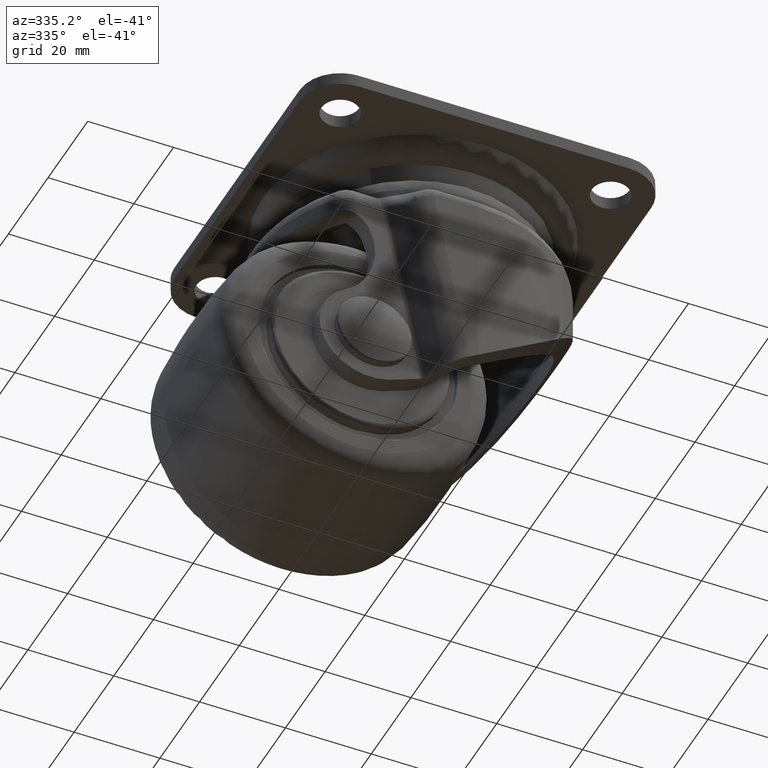
[diagram: clean part render]
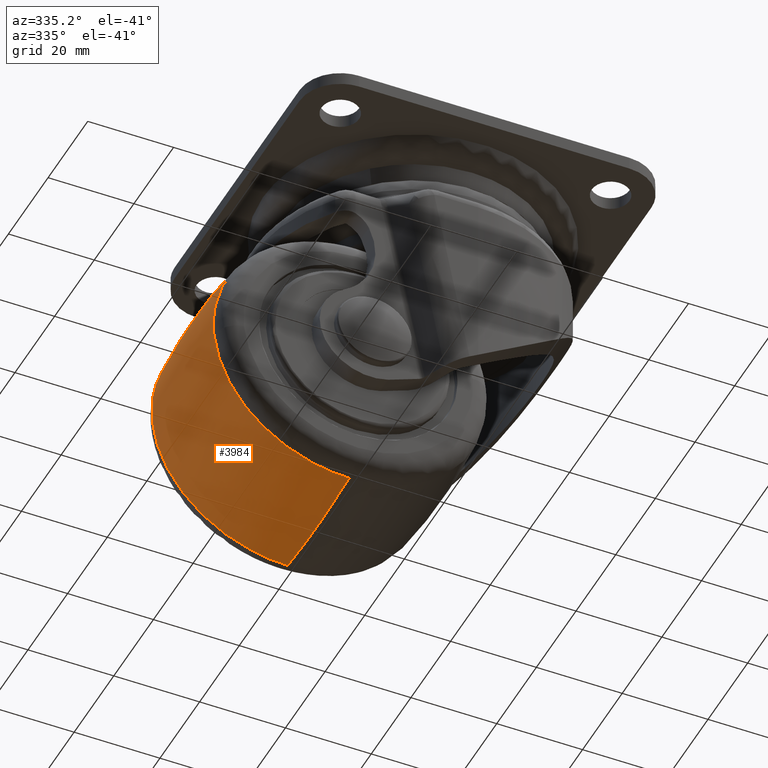
[diagram: same view with one face highlighted and labeled with its STEP entity id]
A machine part, auxiliary view. The second image highlights one B-rep face of the part: STEP entity #3984.
In plain terms, the highlighted face is a freeform B-spline surface patch.
Its self-contained STEP definition (entity closure, byte-faithful):
#3663=CARTESIAN_POINT('',(-31.572678825541949,-15.517245946462900,-2.784463437110068));
#3664=VERTEX_POINT('',#3663);
#3678=CARTESIAN_POINT('',(0.0,-15.517245970402470,-31.695224714110800));
#3679=VERTEX_POINT('',#3678);
#3680=CARTESIAN_POINT('',(-31.572678825541949,-15.517245946462900,-2.784463437110068));
#3681=CARTESIAN_POINT('',(-31.454430102422720,-15.517245947018649,-4.125565868471425));
#3682=CARTESIAN_POINT('',(-30.991182493355549,-15.517245948355249,-7.156404525607689));
#3683=CARTESIAN_POINT('',(-29.753500861823909,-15.517245950397029,-11.207999117309271));
#3684=CARTESIAN_POINT('',(-28.083201540478090,-15.517245952452569,-14.824743249857320));
#3685=CARTESIAN_POINT('',(-26.036200691073219,-15.517245954587620,-18.241685798995171));
#3686=CARTESIAN_POINT('',(-23.663457677187701,-15.517245956690889,-21.218341385260139));
#3687=CARTESIAN_POINT('',(-20.981522697461831,-15.517245958779981,-23.820691544935379));
#3688=CARTESIAN_POINT('',(-18.158928063179289,-15.517245960796609,-26.079201306347670));
#3689=CARTESIAN_POINT('',(-14.444891783451171,-15.517245963188380,-28.357753105156348));
#3690=CARTESIAN_POINT('',(-10.249339427943760,-15.517245965576571,-30.101344579932480));
#3691=CARTESIAN_POINT('',(-5.385166278793093,-15.517245968059820,-31.368567463679330));
#3692=CARTESIAN_POINT('',(-2.080695884135969,-15.517245969545250,-31.695522136826071));
#3693=CARTESIAN_POINT('',(0.0,-15.517245970402470,-31.695224714110800));
#3694=B_SPLINE_CURVE_WITH_KNOTS('',3,(#3680,#3681,#3682,#3683,#3684,#3685,#3686,#3687,#3688,#3689,#3690,#3691,#3692,#3693),.UNSPECIFIED.,.F.,.U.,(4,1,1,1,1,1,1,1,1,1,1,4),(0.000000042085318,4.038927505506145,9.179434857180056,12.667633120064879,15.972247504716959,21.112730320356292,24.050107376942321,27.171125646638650,31.944463144206409,37.084952140032797,40.756731921153730,46.998750865324517),.UNSPECIFIED.);
#3695=EDGE_CURVE('',#3664,#3679,#3694,.T.);
#3768=CARTESIAN_POINT('',(0.0,-15.517245970356919,31.695224714115550));
#3769=VERTEX_POINT('',#3768);
#3788=CARTESIAN_POINT('',(0.0,-15.517245970356919,31.695224714115550));
#3789=CARTESIAN_POINT('',(-1.437586134479441,-15.517245969860230,31.695279446848740));
#3790=CARTESIAN_POINT('',(-4.175830841691867,-15.517245968843859,31.508594626210201));
#3791=CARTESIAN_POINT('',(-8.681735021140920,-15.517245966947231,30.606481727284919));
#3792=CARTESIAN_POINT('',(-12.947395514808511,-15.517245964893050,29.065568373583030));
#3793=CARTESIAN_POINT('',(-16.923046688459880,-15.517245962703489,26.899012310010150));
#3794=CARTESIAN_POINT('',(-20.593423226593000,-15.517245960437821,24.249572277654408));
#3795=CARTESIAN_POINT('',(-23.737538401005970,-15.517245958192509,21.174383483046949));
#3796=CARTESIAN_POINT('',(-26.562095029116200,-15.517245955820190,17.464192371097020));
#3797=CARTESIAN_POINT('',(-28.465107937961349,-15.517245953904530,14.124036177804109));
#3798=CARTESIAN_POINT('',(-30.125740481652318,-15.517245951829590,10.138234086527120));
#3799=CARTESIAN_POINT('',(-31.205751932313269,-15.517245949958999,6.161398154573694));
#3800=CARTESIAN_POINT('',(-31.753052523698209,-15.517245948050540,1.597837856070738));
#3801=CARTESIAN_POINT('',(-31.705045339681060,-15.517245946982440,-1.284244876364103));
#3802=CARTESIAN_POINT('',(-31.572678825541949,-15.517245946462900,-2.784463437110068));
#3803=B_SPLINE_CURVE_WITH_KNOTS('',3,(#3788,#3789,#3790,#3791,#3792,#3793,#3794,#3795,#3796,#3797,#3798,#3799,#3800,#3801,#3802),.UNSPECIFIED.,.F.,.U.,(4,1,1,1,1,1,1,1,1,1,1,1,4),(0.000000035532544,4.312758006721609,8.214811917297830,13.759837748079260,17.867251218336861,21.769300674580499,27.314262025869208,31.010945948313321,35.734496987407908,38.815055771796047,43.949335781838222,48.056752883573679,52.574892375337427),.UNSPECIFIED.);
#3804=EDGE_CURVE('',#3769,#3664,#3803,.T.);
#3839=CARTESIAN_POINT('',(0.0,15.517241799087399,-31.695222638674210));
#3840=VERTEX_POINT('',#3839);
#3841=CARTESIAN_POINT('',(0.0,-15.517245970402465,-31.695224714110804));
#3842=CARTESIAN_POINT('',(0.0,-0.000002106822294,-33.309114884492459));
#3843=CARTESIAN_POINT('',(0.0,15.517241799087392,-31.695222638674206));
#3851=(BOUNDED_CURVE()B_SPLINE_CURVE(2,(#3841,#3842,#3843),.UNSPECIFIED.,.F.,.U.)B_SPLINE_CURVE_WITH_KNOTS((3,3),(0.425603894147445,0.574396086990203),.UNSPECIFIED.)CURVE()GEOMETRIC_REPRESENTATION_ITEM()RATIONAL_B_SPLINE_CURVE((0.894065071578611,0.889268262362813,0.894065070362430))REPRESENTATION_ITEM(''));
#3852=EDGE_CURVE('',#3679,#3840,#3851,.T.);
#3873=CARTESIAN_POINT('',(0.0,15.517241988190010,31.695225128286101));
#3874=VERTEX_POINT('',#3873);
#3895=CARTESIAN_POINT('',(0.0,-15.517245970356933,31.695224714115572));
#3896=CARTESIAN_POINT('',(0.0,-0.000002012621641,33.309116122071813));
#3897=CARTESIAN_POINT('',(0.0,15.517241988189989,31.695225128286037));
#3905=(BOUNDED_CURVE()B_SPLINE_CURVE(2,(#3895,#3896,#3897),.UNSPECIFIED.,.F.,.U.)B_SPLINE_CURVE_WITH_KNOTS((3,3),(0.425603894147665,0.574396086657192),.UNSPECIFIED.)CURVE()GEOMETRIC_REPRESENTATION_ITEM()RATIONAL_B_SPLINE_CURVE((0.894065071578597,0.889268262373556,0.894065070340959))REPRESENTATION_ITEM(''));
#3906=EDGE_CURVE('',#3769,#3874,#3905,.T.);
#3913=CARTESIAN_POINT('',(0.881390577115468,-17.057818694523391,31.526946628402634));
#3914=CARTESIAN_POINT('',(0.935974984137161,-0.000003126559354,33.479406447689392));
#3915=CARTESIAN_POINT('',(0.881390596866458,17.057812522269757,31.526947334886707));
#3916=CARTESIAN_POINT('',(0.443261787586136,-17.057818694523387,31.526946628402634));
#3917=CARTESIAN_POINT('',(0.470712934057373,-0.000003126559354,33.479406447689399));
#3918=CARTESIAN_POINT('',(0.443261797519143,17.057812522269753,31.526947334886710));
#3919=CARTESIAN_POINT('',(-31.526946628402648,-17.057818694523391,31.526946628402648));
#3920=CARTESIAN_POINT('',(-33.479406447689399,-0.000003126559356,33.479406447689421));
#3921=CARTESIAN_POINT('',(-31.526947334886717,17.057812522269764,31.526947334886717));
#3922=CARTESIAN_POINT('',(-31.526946628402634,-17.057818694523384,0.0));
#3923=CARTESIAN_POINT('',(-33.479406447689392,-0.000003126559354,0.0));
#3924=CARTESIAN_POINT('',(-31.526947334886703,17.057812522269753,0.0));
#3925=CARTESIAN_POINT('',(-31.526946628402648,-17.057818694523391,-31.526946628402648));
#3926=CARTESIAN_POINT('',(-33.479406447689421,-0.000003126559356,-33.479406447689399));
#3927=CARTESIAN_POINT('',(-31.526947334886717,17.057812522269764,-31.526947334886717));
#3928=CARTESIAN_POINT('',(0.443261787586135,-17.057818694523387,-31.526946628402634));
#3929=CARTESIAN_POINT('',(0.470712934057372,-0.000003126559354,-33.479406447689399));
#3930=CARTESIAN_POINT('',(0.443261797519142,17.057812522269753,-31.526947334886710));
#3931=CARTESIAN_POINT('',(0.881390577115467,-17.057818694523391,-31.526946628402634));
#3932=CARTESIAN_POINT('',(0.935974984137160,-0.000003126559354,-33.479406447689399));
#3933=CARTESIAN_POINT('',(0.881390596866457,17.057812522269757,-31.526947334886707));
#3941=(BOUNDED_SURFACE()B_SPLINE_SURFACE(2,2,((#3913,#3916,#3919,#3922,#3925,#3928,#3931),(#3914,#3917,#3920,#3923,#3926,#3929,#3932),(#3915,#3918,#3921,#3924,#3927,#3930,#3933)),.UNSPECIFIED.,.F.,.F.,.U.)B_SPLINE_SURFACE_WITH_KNOTS((3,3),(3,1,2,1,3),(0.0,34.226645686437699),(0.0,1.076955262170048,54.924718370672359,108.772481479174700,109.849436741344700),.UNSPECIFIED.)GEOMETRIC_REPRESENTATION_ITEM()RATIONAL_B_SPLINE_SURFACE(((0.905048727189184,0.899808467947266,0.632555246609455,0.894568208705349,0.632555246609455,0.899808467947266,0.905048727189184),(0.899177656821981,0.893971391253362,0.628451847253796,0.888765125684743,0.628451847253796,0.893971391253362,0.899177656821981),(0.905048725050907,0.899808465821370,0.632555245114973,0.894568206591833,0.632555245114973,0.899808465821370,0.905048725050907)))REPRESENTATION_ITEM('')SURFACE());
#3942=ORIENTED_EDGE('',*,*,#3852,.F.);
#3943=ORIENTED_EDGE('',*,*,#3695,.F.);
#3944=ORIENTED_EDGE('',*,*,#3804,.F.);
#3945=ORIENTED_EDGE('',*,*,#3906,.T.);
#3946=CARTESIAN_POINT('',(-31.445296424849559,15.517241640434630,3.972464752442899));
#3947=VERTEX_POINT('',#3946);
#3948=CARTESIAN_POINT('',(0.0,15.517241988190010,31.695225128286101));
#3949=CARTESIAN_POINT('',(-2.326014448882714,15.517241977161561,31.695689831095159));
#3950=CARTESIAN_POINT('',(-6.023508073197664,15.517241956691970,31.286250065154011));
#3951=CARTESIAN_POINT('',(-10.497101912914960,15.517241926081089,29.975103924410490));
#3952=CARTESIAN_POINT('',(-14.023560433276989,15.517241898818281,28.504275565903100));
#3953=CARTESIAN_POINT('',(-17.257162637707061,15.517241870496990,26.691822882583342));
#3954=CARTESIAN_POINT('',(-20.849383011734950,15.517241834270010,24.013311560770781));
#3955=CARTESIAN_POINT('',(-23.949265641083780,15.517241797516411,20.935490408710290));
#3956=CARTESIAN_POINT('',(-26.526541467150562,15.517241760605970,17.489478235544670));
#3957=CARTESIAN_POINT('',(-28.488321821607851,15.517241726799250,14.069664902230381));
#3958=CARTESIAN_POINT('',(-30.347889221424239,15.517241686421960,9.664789556365458));
#3959=CARTESIAN_POINT('',(-31.169098833667750,15.517241657430111,6.161835418890422));
#3960=CARTESIAN_POINT('',(-31.445296424849559,15.517241640434630,3.972464752442899));
#3961=B_SPLINE_CURVE_WITH_KNOTS('',3,(#3948,#3949,#3950,#3951,#3952,#3953,#3954,#3955,#3956,#3957,#3958,#3959,#3960),.UNSPECIFIED.,.F.,.U.,(4,1,1,1,1,1,1,1,1,1,4),(0.000000042257582,6.977916494395736,11.093122096561221,13.955867140033080,18.428922851436461,22.186247207714359,27.374939435167231,31.490145911312059,35.068583717565147,39.183790244569508,45.803863291872140),.UNSPECIFIED.);
#3962=EDGE_CURVE('',#3874,#3947,#3961,.T.);
#3963=ORIENTED_EDGE('',*,*,#3962,.T.);
#3964=CARTESIAN_POINT('',(-31.445296424849559,15.517241640434630,3.972464752442899));
#3965=CARTESIAN_POINT('',(-31.717669377927479,15.517241642010550,1.819202713099166));
#3966=CARTESIAN_POINT('',(-31.785002877139348,15.517241645303150,-1.136047955191343));
#3967=CARTESIAN_POINT('',(-31.313730418295670,15.517241651876271,-5.172069384226355));
#3968=CARTESIAN_POINT('',(-30.597895639138429,15.517241658626750,-8.603773117008464));
#3969=CARTESIAN_POINT('',(-29.305506576729840,15.517241667840370,-12.317417518958811));
#3970=CARTESIAN_POINT('',(-27.251655110430431,15.517241680286970,-16.386553346971251));
#3971=CARTESIAN_POINT('',(-25.008916834950011,15.517241692427721,-19.618819234452172));
#3972=CARTESIAN_POINT('',(-22.045173313111309,15.517241707273790,-22.891947839897028));
#3973=CARTESIAN_POINT('',(-18.580435940566900,15.517241723608491,-25.864619351411250));
#3974=CARTESIAN_POINT('',(-14.360223390472530,15.517241742196440,-28.394714291217259));
#3975=CARTESIAN_POINT('',(-9.813974342691394,15.517241761179671,-30.251023231220000));
#3976=CARTESIAN_POINT('',(-5.180903481376692,15.517241779647639,-31.410358214982349));
#3977=CARTESIAN_POINT('',(-1.750321157371436,15.517241792635341,-31.695351351045030));
#3978=CARTESIAN_POINT('',(0.0,15.517241799087399,-31.695222638674210));
#3979=B_SPLINE_CURVE_WITH_KNOTS('',3,(#3964,#3965,#3966,#3967,#3968,#3969,#3970,#3971,#3972,#3973,#3974,#3975,#3976,#3977,#3978),.UNSPECIFIED.,.F.,.U.,(4,1,1,1,1,1,1,1,1,1,1,1,4),(0.000000035454292,6.511163858052250,8.821595782553835,12.182214579860499,17.013103995912289,20.583769324055240,25.834740873197699,28.775231236149949,33.816142054219370,39.487179167754448,43.477916396659978,48.518822921346853,53.769777167442022),.UNSPECIFIED.);
#3980=EDGE_CURVE('',#3947,#3840,#3979,.T.);
#3981=ORIENTED_EDGE('',*,*,#3980,.T.);
#3982=EDGE_LOOP('',(#3942,#3943,#3944,#3945,#3963,#3981));
#3983=FACE_OUTER_BOUND('',#3982,.T.);
#3984=ADVANCED_FACE('',(#3983),#3941,.T.);